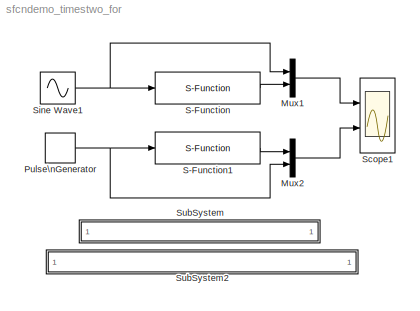
MODEL sfcndemo_timestwo_for
KIND model
BLOCK [Mux] Mux1
  DisplayOption = bar
  Inputs = 2
  Ports = [2, 1]
BLOCK [Mux] Mux2
  DisplayOption = bar
  Inputs = 2
  Ports = [2, 1]
BLOCK [DiscretePulseGenerator] Pulse\nGenerator
  Amplitude = 2
  Period = 1
  Ports = [0, 1]
  PulseType = Time based
  PulseWidth = 50
BLOCK [S-Function] S-Function
  FunctionName = sfun_timestwo_for
  Ports = [1, 1]
BLOCK [S-Function] S-Function1
  FunctionName = sfun_timestwo_for
  Ports = [1, 1]
BLOCK [Scope] Scope1
  DataFormat = StructureWithTime
  NumInputPorts = 2
  Ports = [2]
  SaveName = ScopeData1
  TimeRange = 10
  YMax = 8~5
  YMin = -8~-1
BLOCK [Sin] Sine Wave1
  Amplitude = 3
  Ports = [0, 1]
  SampleTime = 0
  SineType = Time based
BLOCK [SubSystem] SubSystem
  MaskDisplay = disp('matlabroot<path>');
  MaskIconFrame = on
  MaskIconOpaque = on
  MaskIconRotate = none
  MaskIconUnits = autoscale
  MinAlgLoopOccurrences = off
  OpenFcn = edit(fullfile(matlabroot,'simulink','src','sfun_timestwo_for.F'))
  Ports = []
  PropExecContextAcrossSSBoundary = on
  RTWSystemCode = Auto
  TreatAsAtomicUnit = off
BLOCK [SubSystem] SubSystem2
  MaskDisplay = disp('matlabroot<path>');
  MaskIconFrame = on
  MaskIconOpaque = on
  MaskIconRotate = none
  MaskIconUnits = autoscale
  MinAlgLoopOccurrences = off
  OpenFcn = edit(fullfile(matlabroot,'toolbox','simulink','blocks','tlc_c','timestwo.tlc'))
  Ports = []
  PropExecContextAcrossSSBoundary = on
  RTWSystemCode = Auto
  TreatAsAtomicUnit = off
LINE Mux1:1 -> Scope1:1
LINE Mux2:1 -> Scope1:2
NET Pulse\nGenerator:1 -> Mux2:2, S-Function1:1
LINE S-Function1:1 -> Mux2:1
LINE S-Function:1 -> Mux1:2
NET Sine Wave1:1 -> Mux1:1, S-Function:1
note: NET lines group one-source signal fan-out (src -> all destinations, sorted); 1:1 wires keep LINE
note: 2 file-system paths scrubbed to <path> (not preserved elsewhere — flat text is the only slx artifact)
